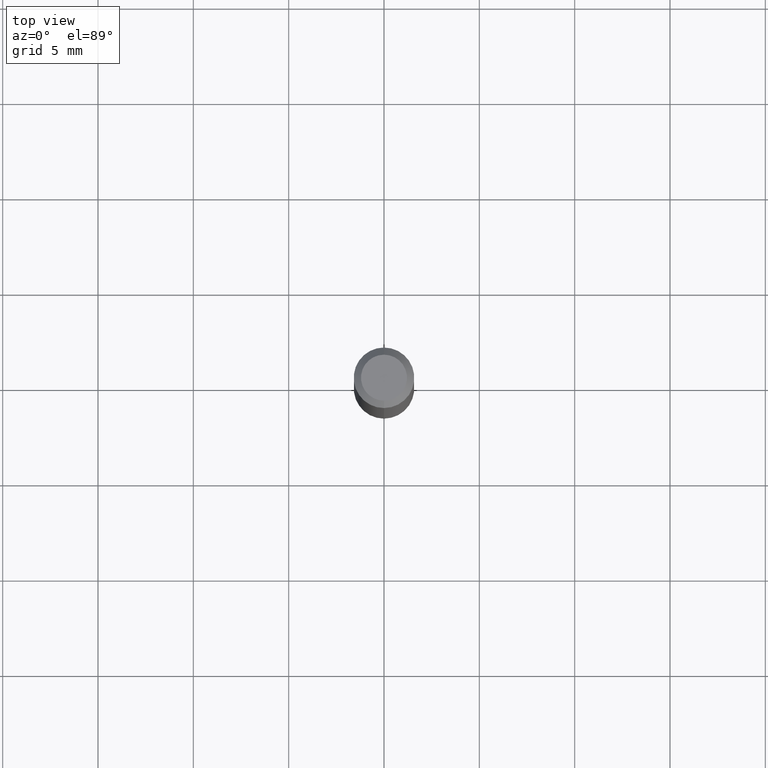
[diagram: clean part render]
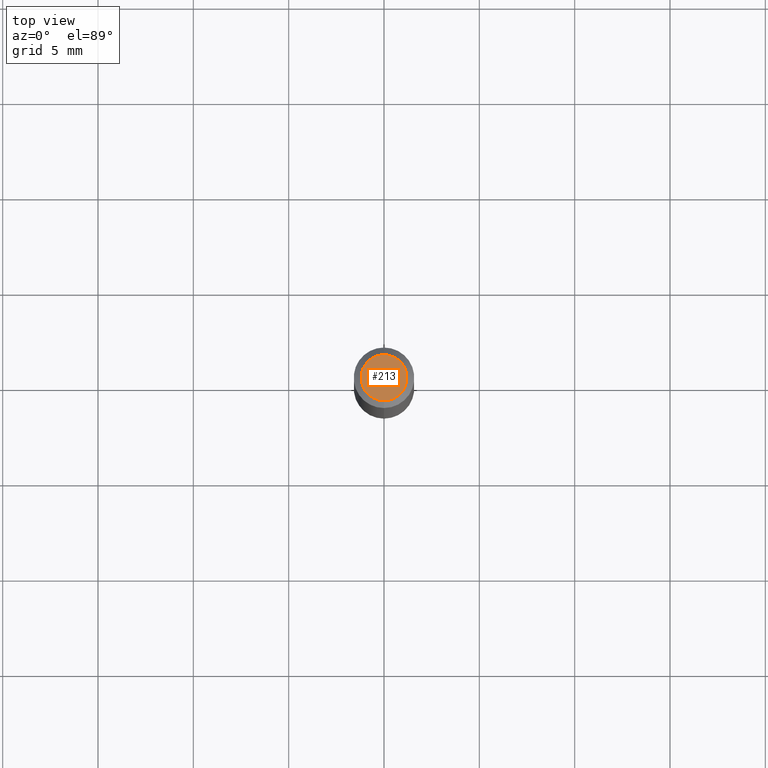
[diagram: same view with one face highlighted and labeled with its STEP entity id]
A machine part, top view. The second image highlights one B-rep face of the part: STEP entity #213.
In plain terms, the highlighted planar face has unit normal (0, -0, -1).
Its self-contained STEP definition (entity closure, byte-faithful):
#10 = CARTESIAN_POINT ( 'NONE',  ( -3.773273898774340269E-16, -0.04749999999999999362, 1.569849637185620268E-16 ) ) ;
#11 = ORIENTED_EDGE ( 'NONE', *, *, #161, .T. ) ;
#14 = VERTEX_POINT ( 'NONE', #265 ) ;
#41 = AXIS2_PLACEMENT_3D ( 'NONE', #267, #224, #67 ) ;
#53 = DIRECTION ( 'NONE',  ( -6.982962677686266711E-15, -1.000000000000000000, 3.491480493741501007E-15 ) ) ;
#57 = FACE_OUTER_BOUND ( 'NONE', #99, .T. ) ;
#67 = DIRECTION ( 'NONE',  ( 6.982962677686265922E-15, 1.000000000000000000, -3.491480493741500613E-15 ) ) ;
#98 = DIRECTION ( 'NONE',  ( -2.445469396316461036E-29, 3.491480493741500613E-15, 1.000000000000000000 ) ) ;
#99 = EDGE_LOOP ( 'NONE', ( #11, #398 ) ) ;
#103 = CIRCLE ( 'NONE', #482, 0.04749999999999999362 ) ;
#126 = VERTEX_POINT ( 'NONE', #10 ) ;
#146 = EDGE_CURVE ( 'NONE', #126, #14, #103, .T. ) ;
#161 = EDGE_CURVE ( 'NONE', #14, #126, #459, .T. ) ;
#170 = DIRECTION ( 'NONE',  ( -2.445469396316461036E-29, 3.491480493741500613E-15, 1.000000000000000000 ) ) ;
#212 = CARTESIAN_POINT ( 'NONE',  ( 2.166773857024105431E-46, -3.093577317934958316E-32, -8.860359734159231081E-18 ) ) ;
#213 = ADVANCED_FACE ( 'NONE', ( #57 ), #423, .F. ) ;
#224 = DIRECTION ( 'NONE',  ( 2.445469396316460756E-29, -3.491480493741500613E-15, -1.000000000000000000 ) ) ;
#265 = CARTESIAN_POINT ( 'NONE',  ( 3.840629472727447874E-16, 0.04749999999999999362, -1.747056831868805136E-16 ) ) ;
#267 = CARTESIAN_POINT ( 'NONE',  ( 3.316907271900976096E-16, 0.04749999999999999362, -1.702755033198008919E-16 ) ) ;
#328 = DIRECTION ( 'NONE',  ( -6.982962677686266711E-15, -1.000000000000000000, 3.491480493741501007E-15 ) ) ;
#332 = CARTESIAN_POINT ( 'NONE',  ( 2.166773857024105431E-46, -3.093577317934958316E-32, -8.860359734159231081E-18 ) ) ;
#349 = AXIS2_PLACEMENT_3D ( 'NONE', #332, #98, #53 ) ;
#398 = ORIENTED_EDGE ( 'NONE', *, *, #146, .T. ) ;
#423 = PLANE ( 'NONE',  #41 ) ;
#459 = CIRCLE ( 'NONE', #349, 0.04749999999999999362 ) ;
#482 = AXIS2_PLACEMENT_3D ( 'NONE', #212, #170, #328 ) ;